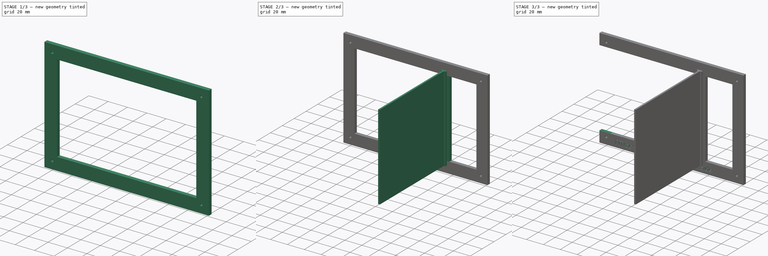
[diagram: build sequence overview — one tinted view per stage of 3, left to right]
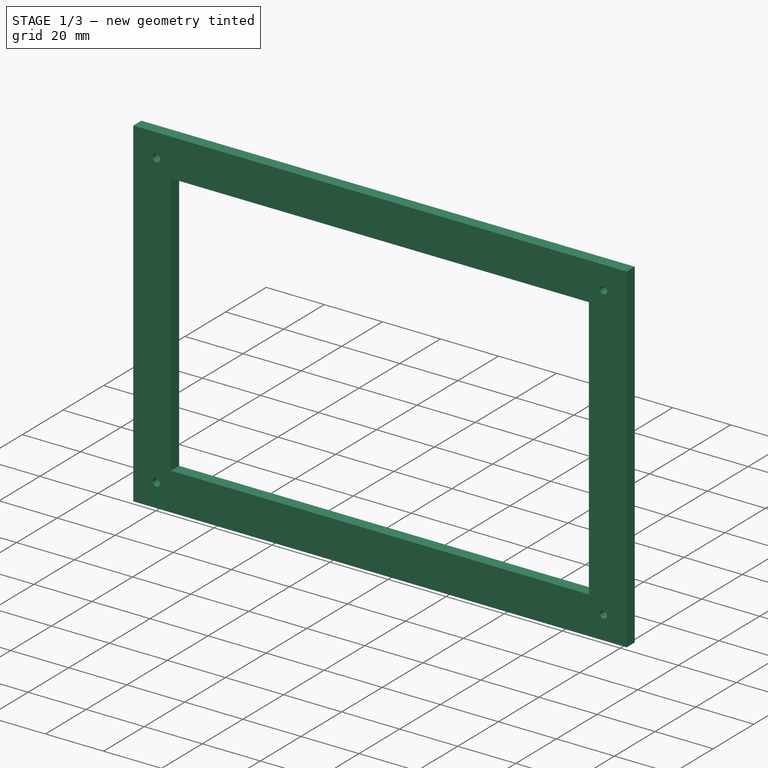
[diagram: stage 1 of 3 — iso view after this stage's code; geometry added in this stage tinted green]
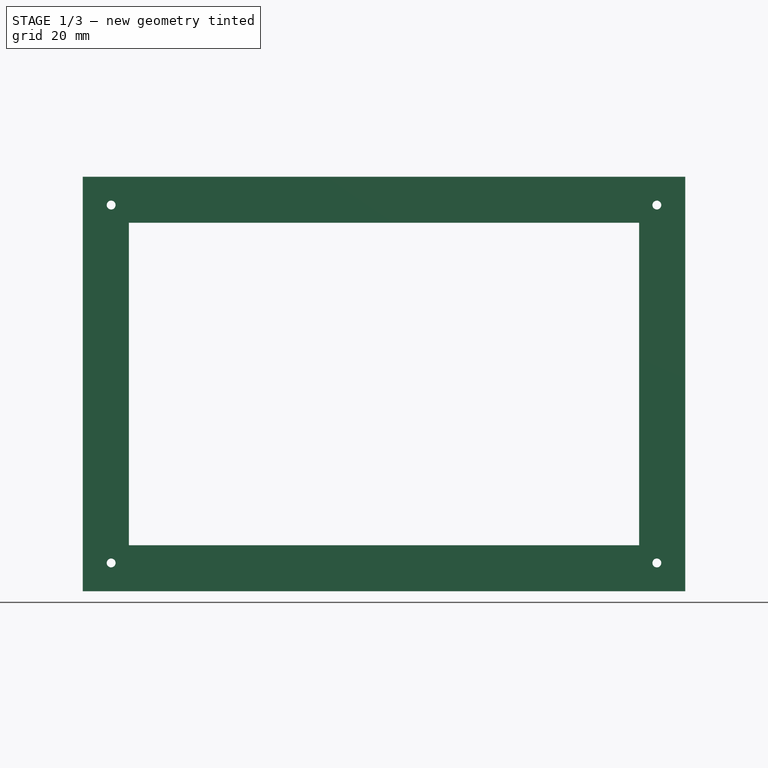
[diagram: stage 1 of 3 — front view after this stage's code; geometry added in this stage tinted green]
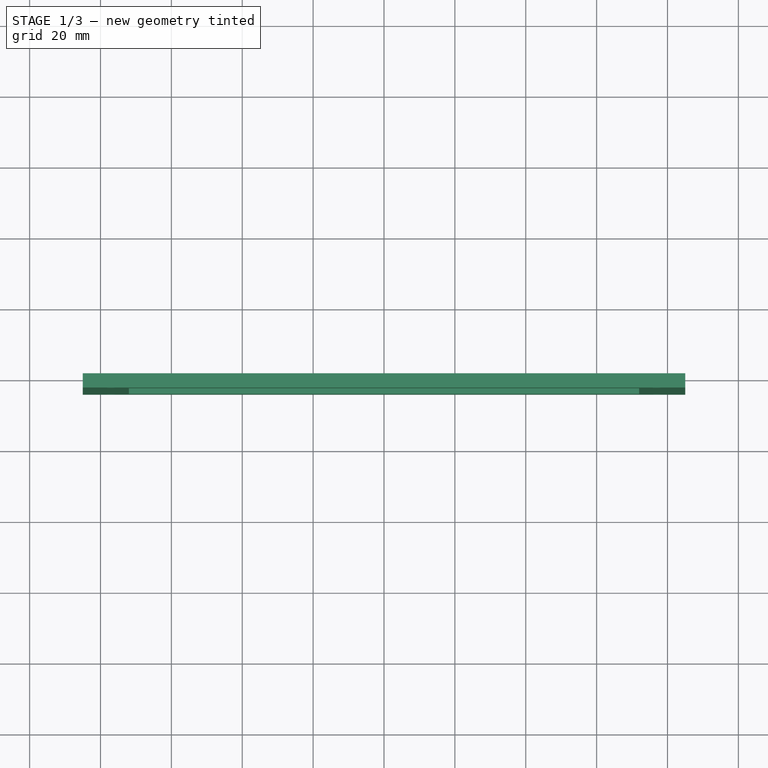
[diagram: stage 1 of 3 — top view after this stage's code; geometry added in this stage tinted green]
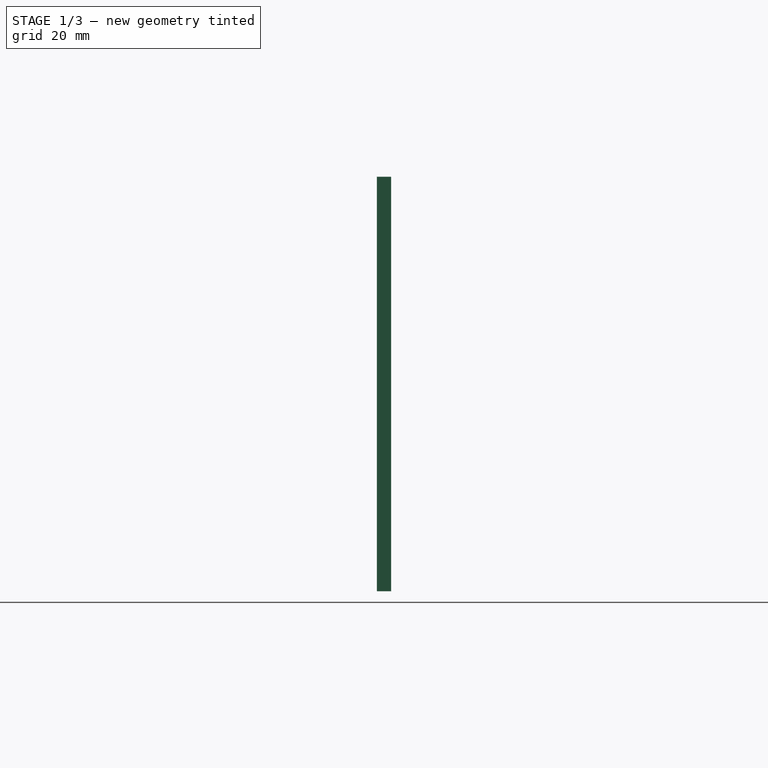
[diagram: stage 1 of 3 — right view after this stage's code; geometry added in this stage tinted green]
FCSTD DOCUMENT  (FreeCAD 1.0R39109 (Git))
Label: Middle Layer - Power Side - Lower Floor
License: All rights reserved
LicenseURL: https://en.wikipedia.org/wiki/All_rights_reserved
objects: Sketcher::SketchObject×6, PartDesign::Pad×4, PartDesign::Pocket×3, App::Link×1, Part::Part2DObjectPython×1, PartDesign::Body×1, App::Part×1
note: 35 computed .brp shape members not serialized (recipe doc carries the construction recipe); baked Part::Feature solids carry a one-line shape summary decoded from their .brp
EXTERNAL_REF file=../Master Document.FCStd obj=Spreadsheet

FEATURE [Sketcher::SketchObject] Sketch005
  ArcFitTolerance = 0
  AttachmentSupport = -> [XZ_Plane006]
  FullyConstrained = true
  MakeInternals = false
  MapMode = 5
  Placement = pos=(0,0,0) rot=(1,0,0;1.5708rad)
  expr: Constraints[10] = <<Monitor Chassis Parameters>>.GSMonitorFloorWidth_PiSide / 2
  expr: Constraints[11] = <<Monitor Chassis Parameters>>.GSMonitorFloorLength_PiSide / 2
  expr: Constraints[8] = <<Monitor Chassis Parameters>>.GSMonitorFloorWidth_PiSide
  expr: Constraints[9] = <<Monitor Chassis Parameters>>.GSMonitorFloorLength_PiSide
  sketch-geometry (4):
    g0: LineSegment StartX=-85 StartY=58.5 StartZ=0 EndX=85 EndY=58.5 EndZ=0
    g1: LineSegment StartX=85 StartY=58.5 StartZ=0 EndX=85 EndY=-58.5 EndZ=0
    g2: LineSegment StartX=85 StartY=-58.5 StartZ=0 EndX=-85 EndY=-58.5 EndZ=0
    g3: LineSegment StartX=-85 StartY=-58.5 StartZ=0 EndX=-85 EndY=58.5 EndZ=0
  constraints (12):
    c: Coincident(g0,g1)
    c: Coincident(g1,g2)
    c: Coincident(g2,g3)
    c: Coincident(g3,g0)
    c: Horizontal(g0)
    c: Horizontal(g2)
    c: Vertical(g1)
    c: Vertical(g3)
    c: DistanceY(g2,g0) = 117
    c: DistanceX(g0,g0) = 170
    c: DistanceY(g-1,g0) = 58.5
    c: DistanceX(g0,g-1) = 85
FEATURE [PartDesign::Pad] Pad002  label="Floor Power Pad"
  Direction = (0,-1,2e-16)
  Length = 4
  Length2 = 10
  Placement = pos=(0,0,0) rot=(1,0,0;1.5708rad)
  Profile = -> Sketch005
  ReferenceAxis = -> Sketch005 [N_Axis]
  Suppressed = false
  Type = 0
  expr: Length = <<Monitor Chassis Parameters>>.GSCamPlateThickness
FEATURE [Sketcher::SketchObject] Sketch007
  ArcFitTolerance = 0
  ExternalGeometry = -> [Sketch005]
  FullyConstrained = true
  MakeInternals = false
  MapMode = 5
  Placement = pos=(0,0,0) rot=(-1,0,0;1.5708rad)
  expr: Constraints[10] = <<Monitor Chassis Parameters>>.GSMonitorFloorMountHoleEdgeOffset
  expr: Constraints[11] = <<Monitor Chassis Parameters>>.GSMonitorFloorMountHoleSideOffset
  expr: Constraints[12] = <<Monitor Chassis Parameters>>.GSMonitorFloorMountingScrewDiameter
  expr: Constraints[13] = <<Monitor Chassis Parameters>>.GSMonitorFloorMountingScrewDiameter
  expr: Constraints[14] = 1.3 * <<Monitor Chassis Parameters>>.GSMonitorFloorRibMinimumWidth
  expr: Constraints[15] = <<Monitor Chassis Parameters>>.GSMonitorFloorMountingScrewDiameter
  expr: Constraints[16] = <<Monitor Chassis Parameters>>.GSMonitorFloorMountingScrewDiameter
  expr: Constraints[18] = <<Monitor Chassis Parameters>>.GSMonitorFloorMountHoleEdgeOffset
  expr: Constraints[19] = <<Monitor Chassis Parameters>>.GSMonitorFloorMountHoleSideOffset
  expr: Constraints[20] = 1.3 * <<Monitor Chassis Parameters>>.GSMonitorFloorRibMinimumWidth
  expr: Constraints[8] = 1.3 * <<Monitor Chassis Parameters>>.GSMonitorFloorRibMinimumWidth
  expr: Constraints[9] = 1.3 * <<Monitor Chassis Parameters>>.GSMonitorFloorRibMinimumWidth
  sketch-geometry (8):
    g0: LineSegment StartX=-72 StartY=45.5 StartZ=0 EndX=72 EndY=45.5 EndZ=0
    g1: LineSegment StartX=72 StartY=45.5 StartZ=0 EndX=72 EndY=-45.5 EndZ=0
    g2: LineSegment StartX=72 StartY=-45.5 StartZ=0 EndX=-72 EndY=-45.5 EndZ=0
    g3: LineSegment StartX=-72 StartY=-45.5 StartZ=0 EndX=-72 EndY=45.5 EndZ=0
    g4: Circle CenterX=-77 CenterY=50.5 CenterZ=0 NormalX=0 NormalY=0 NormalZ=1 AngleXU=0 Radius=1.25
    g5: Circle CenterX=-77 CenterY=-50.5 CenterZ=0 NormalX=0 NormalY=0 NormalZ=1 AngleXU=0 Radius=1.25
    g6: Circle CenterX=77 CenterY=-50.5 CenterZ=0 NormalX=0 NormalY=0 NormalZ=1 AngleXU=0 Radius=1.25
    g7: Circle CenterX=77 CenterY=50.5 CenterZ=0 NormalX=0 NormalY=0 NormalZ=1 AngleXU=0 Radius=1.25
  constraints (24):
    c: Coincident(g0,g1)
    c: Coincident(g1,g2)
    c: Coincident(g2,g3)
    c: Coincident(g3,g0)
    c: Horizontal(g0)
    c: Horizontal(g2)
    c: Vertical(g1)
    c: Vertical(g3)
    c: DistanceY(g0,g-3) = 13
    c: DistanceY(g-4,g2) = 13
    c: DistanceX(g-3,g4) = 8
    c: DistanceY(g4,g-3) = 8
    c: Diameter(g4) = 2.5
    c: Diameter(g5) = 2.5
    c: DistanceX(g-3,g0) = 13
    c: Diameter(g6) = 2.5
    c: Diameter(g7) = 2.5
    c: Vertical(g7,g6)
    c: DistanceX(g6,g-5) = 8
    c: DistanceY(g-5,g6) = 8
    c: DistanceX(g1,g-5) = 13
    c: Horizontal(g5,g6)
    c: Horizontal(g4,g7)
    c: Vertical(g5,g4)
FEATURE [PartDesign::Pocket] Pocket003  label="Floor Power Holes Pocket"
  BaseFeature = -> Pad002
  Direction = (0,-1,0)
  Length = 4
  Length2 = 5
  Placement = pos=(0,0,0) rot=(1,0,0;1.5708rad)
  Profile = -> Sketch007
  ReferenceAxis = -> Sketch007 [N_Axis]
  Suppressed = false
  Type = 0
  expr: Length = <<Monitor Chassis Parameters>>.GSCamPlateThickness
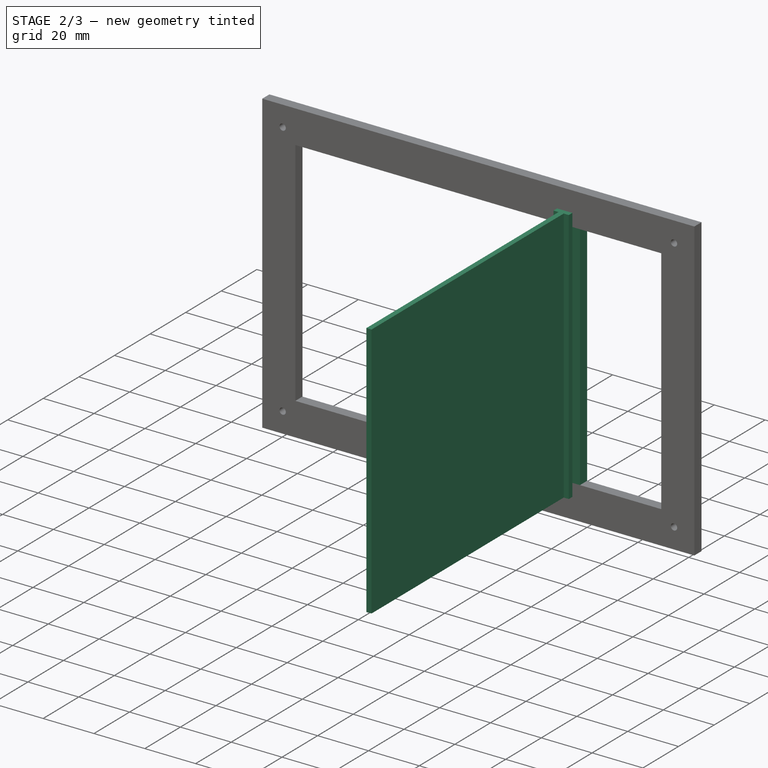
[diagram: stage 2 of 3 — iso view after this stage's code; geometry added in this stage tinted green]
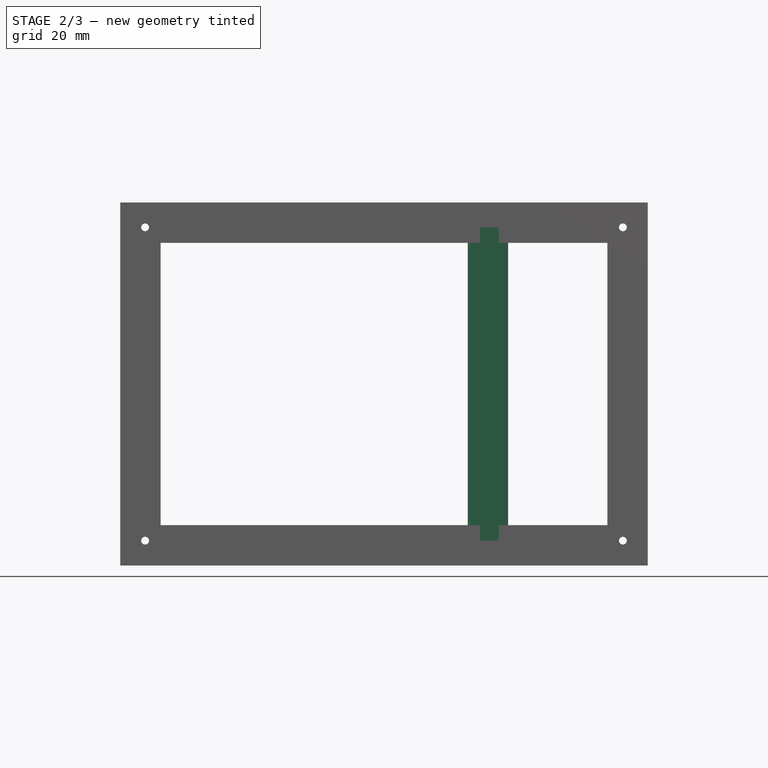
[diagram: stage 2 of 3 — front view after this stage's code; geometry added in this stage tinted green]
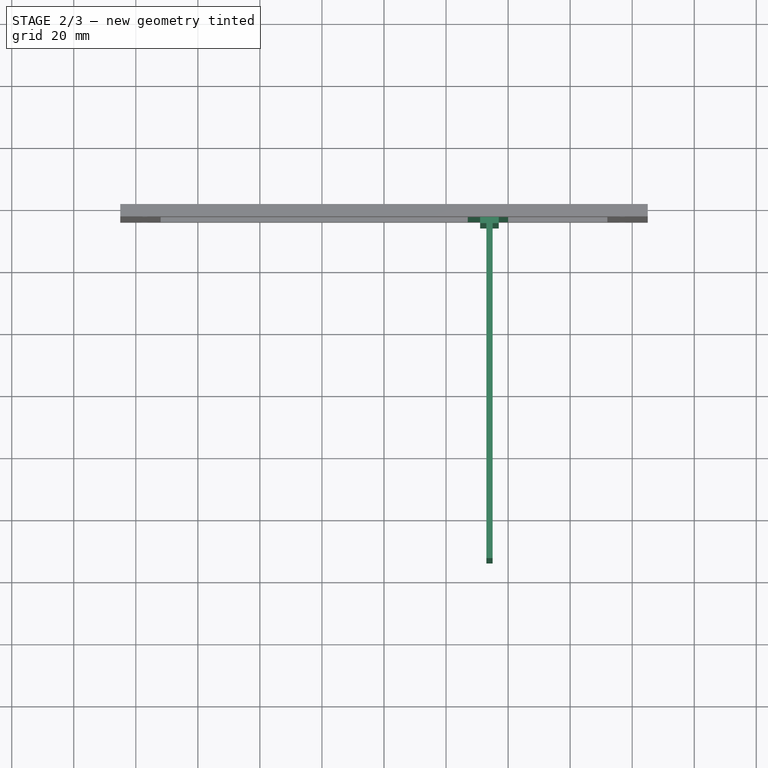
[diagram: stage 2 of 3 — top view after this stage's code; geometry added in this stage tinted green]
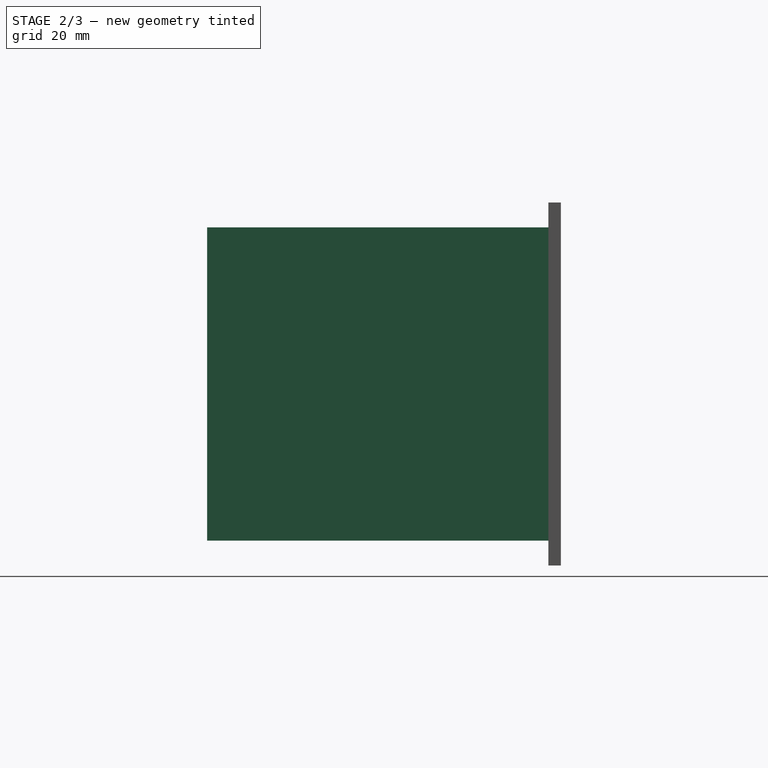
[diagram: stage 2 of 3 — right view after this stage's code; geometry added in this stage tinted green]
FEATURE [Sketcher::SketchObject] Sketch011
  ArcFitTolerance = 0
  FullyConstrained = true
  MakeInternals = false
  MapMode = 5
  Placement = pos=(0,-4,0) rot=(1,0,0;1.5708rad)
  expr: Constraints[10] = <<Monitor Chassis Parameters>>.GSMonitorViewPortLengthLeft
  expr: Constraints[11] = 2 * <<Monitor Chassis Parameters>>.GSCamWallThickness
  expr: Constraints[8] = 2
  expr: Constraints[9] = <<Monitor Chassis Parameters>>.GSMonitorFloorWidth_PiSide - 4 * <<Monitor Chassis Parameters>>.GSCamWallThickness
  sketch-geometry (4):
    g0: LineSegment StartX=33 StartY=50.5 StartZ=0 EndX=35 EndY=50.5 EndZ=0
    g1: LineSegment StartX=35 StartY=50.5 StartZ=0 EndX=35 EndY=-50.5 EndZ=0
    g2: LineSegment StartX=35 StartY=-50.5 StartZ=0 EndX=33 EndY=-50.5 EndZ=0
    g3: LineSegment StartX=33 StartY=-50.5 StartZ=0 EndX=33 EndY=50.5 EndZ=0
  constraints (12):
    c: Coincident(g0,g1)
    c: Coincident(g1,g2)
    c: Coincident(g2,g3)
    c: Coincident(g3,g0)
    c: Horizontal(g0)
    c: Horizontal(g2)
    c: Vertical(g1)
    c: Vertical(g3)
    c: DistanceX(g0,g0) = 2
    c: DistanceY(g2,g0) = 101
    c: DistanceX(g0,g-3) = 50
    c: DistanceY(g0,g-3) = 8
FEATURE [Sketcher::SketchObject] Sketch012
  ArcFitTolerance = 0
  ExternalGeometry = -> [Sketch011,Sketch007]
  FullyConstrained = true
  MakeInternals = false
  MapMode = 5
  Placement = pos=(0,0,0) rot=(-1,0,0;1.5708rad)
  expr: Constraints[8] = 3.25 * <<Monitor Chassis Parameters>>.GSCamWallThickness
  expr: Constraints[9] = 1.25 * <<Monitor Chassis Parameters>>.GSCamWallThickness
  sketch-geometry (4):
    g0: LineSegment StartX=27 StartY=45.5 StartZ=0 EndX=40 EndY=45.5 EndZ=0
    g1: LineSegment StartX=40 StartY=45.5 StartZ=0 EndX=40 EndY=-45.5 EndZ=0
    g2: LineSegment StartX=40 StartY=-45.5 StartZ=0 EndX=27 EndY=-45.5 EndZ=0
    g3: LineSegment StartX=27 StartY=-45.5 StartZ=0 EndX=27 EndY=45.5 EndZ=0
  constraints (12):
    c: Coincident(g0,g1)
    c: Coincident(g1,g2)
    c: Coincident(g2,g3)
    c: Coincident(g3,g0)
    c: Horizontal(g0)
    c: Horizontal(g2)
    c: Vertical(g1)
    c: Vertical(g3)
    c: DistanceX(g0,g0) = 13
    c: DistanceX(g-4,g0) = 5
    c: Horizontal(g-5,g0)
    c: Horizontal(g1,g-6)
FEATURE [PartDesign::Pad] Pad005  label="Side Wall Base Pad"
  BaseFeature = -> Pocket003
  Direction = (0,1,0)
  Length = 4
  Length2 = 10
  Placement = pos=(0,0,0) rot=(1,0,0;1.5708rad)
  Profile = -> Sketch012
  ReferenceAxis = -> Sketch012 [N_Axis]
  Reversed = true
  Suppressed = false
  Type = 0
  expr: Length = <<Monitor Chassis Parameters>>.GSMonitorFloorThickness
FEATURE [PartDesign::Pad] Pad006  label="Side Wall Pad"
  BaseFeature = -> Pad005
  Direction = (0,-1,0)
  Length = 110
  Length2 = 10
  Placement = pos=(0,0,0) rot=(1,0,0;1.5708rad)
  Profile = -> Sketch011
  ReferenceAxis = -> Sketch011 [N_Axis]
  Suppressed = false
  Type = 0
  expr: Length = <<Monitor Chassis Parameters>>.GsMonitorWall2OverallHeight - <<Monitor Chassis Parameters>>.GSMiddleBottomFloorPadDistanceFromBottom
FEATURE [App::Link] Link  label="Monitor Chassis Parameters"
  LinkedObject = -> <external ../Master Document.FCStd>#Spreadsheet
FEATURE [Sketcher::SketchObject] Sketch
  ArcFitTolerance = 1e-06
  AttachmentSupport = -> [Pad006]
  ExternalGeometry = -> [Pad006]
  FullyConstrained = true
  MakeInternals = false
  MapMode = 5
  Placement = pos=(0,-1.11e-14,-50.5) rot=(1,0,0;3.14159rad)
  expr: Constraints[10] = <<Monitor Chassis Parameters>>.GSCamWallThickness
  expr: Constraints[11] = 2
  expr: Constraints[8] = 2
  expr: Constraints[9] = 4
  sketch-geometry (4):
    g0: LineSegment StartX=31 StartY=6 StartZ=0 EndX=31 EndY=4 EndZ=0
    g1: LineSegment StartX=31 StartY=4 StartZ=0 EndX=37 EndY=4 EndZ=0
    g2: LineSegment StartX=37 StartY=4 StartZ=0 EndX=37 EndY=6 EndZ=0
    g3: LineSegment StartX=37 StartY=6 StartZ=0 EndX=31 EndY=6 EndZ=0
  constraints (12):
    c: Coincident(g0,g1)
    c: Coincident(g1,g2)
    c: Coincident(g2,g3)
    c: Coincident(g3,g0)
    c: Vertical(g0)
    c: Vertical(g2)
    c: Horizontal(g1)
    c: Horizontal(g3)
    c: DistanceX(g-3,g1) = 2
    c: DistanceX(g0,g-3) = 4
    c: DistanceY(g-1,g0) = 4
    c: DistanceY(g0,g0) = 2
FEATURE [PartDesign::Pad] Pad  label="Side Wall Support Pad"
  BaseFeature = -> Pad006
  Direction = (0,0,-1)
  Length = 101
  Length2 = 10
  Placement = pos=(0,0,0) rot=(1,0,0;1.5708rad)
  Profile = -> Sketch
  ReferenceAxis = -> Sketch [N_Axis]
  Reversed = true
  Suppressed = false
  Type = 0
  expr: Length = <<Monitor Chassis Parameters>>.GSMonitorFloorWidth_PiSide - 4 * <<Monitor Chassis Parameters>>.GSCamWallThickness
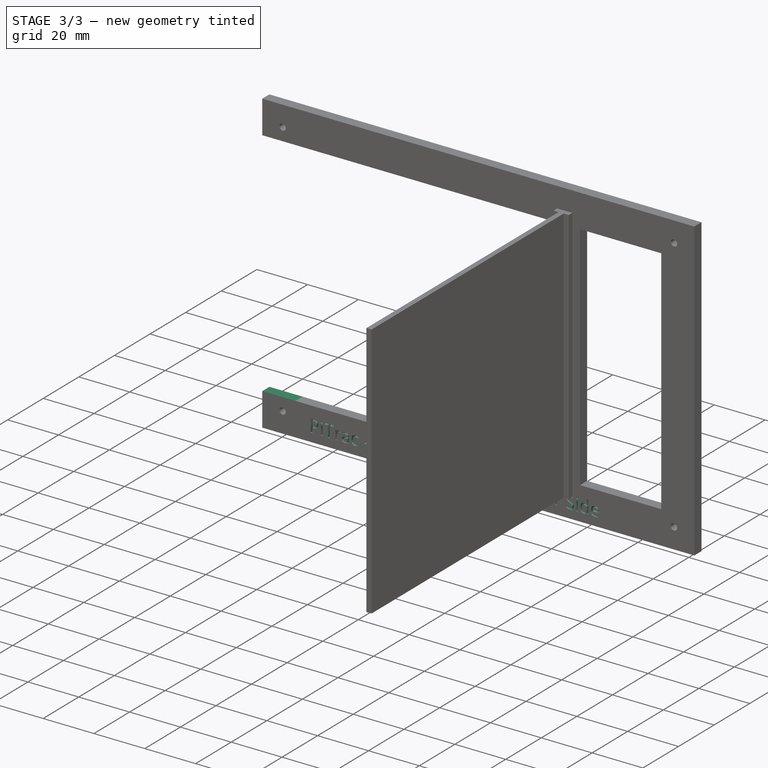
[diagram: stage 3 of 3 — iso view after this stage's code; geometry added in this stage tinted green]
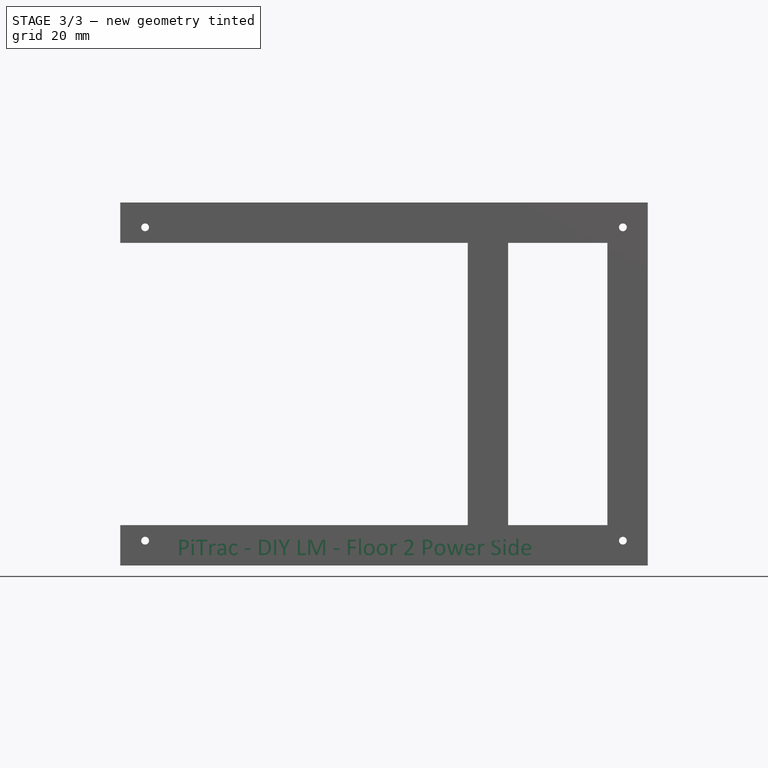
[diagram: stage 3 of 3 — front view after this stage's code; geometry added in this stage tinted green]
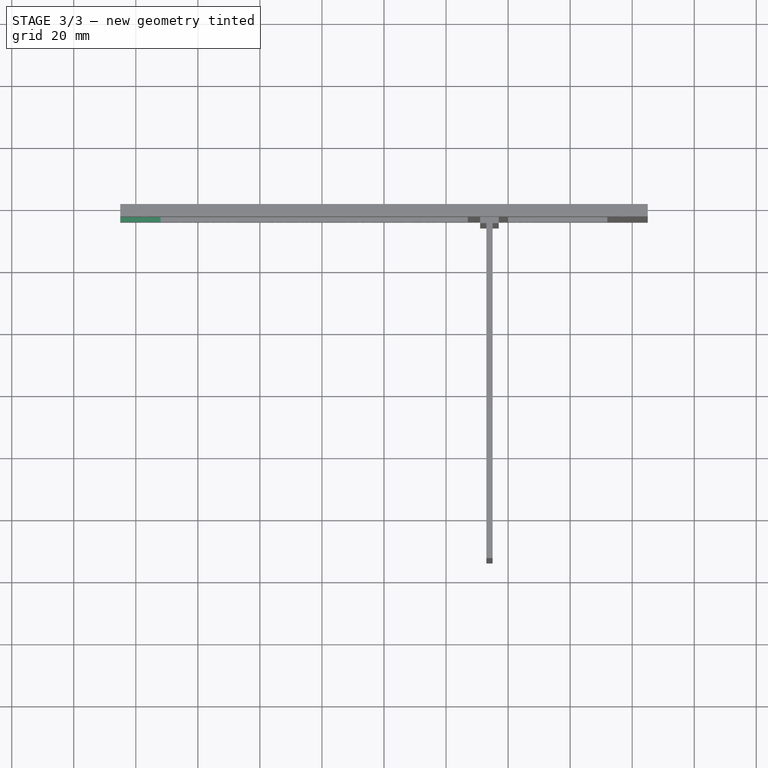
[diagram: stage 3 of 3 — top view after this stage's code; geometry added in this stage tinted green]
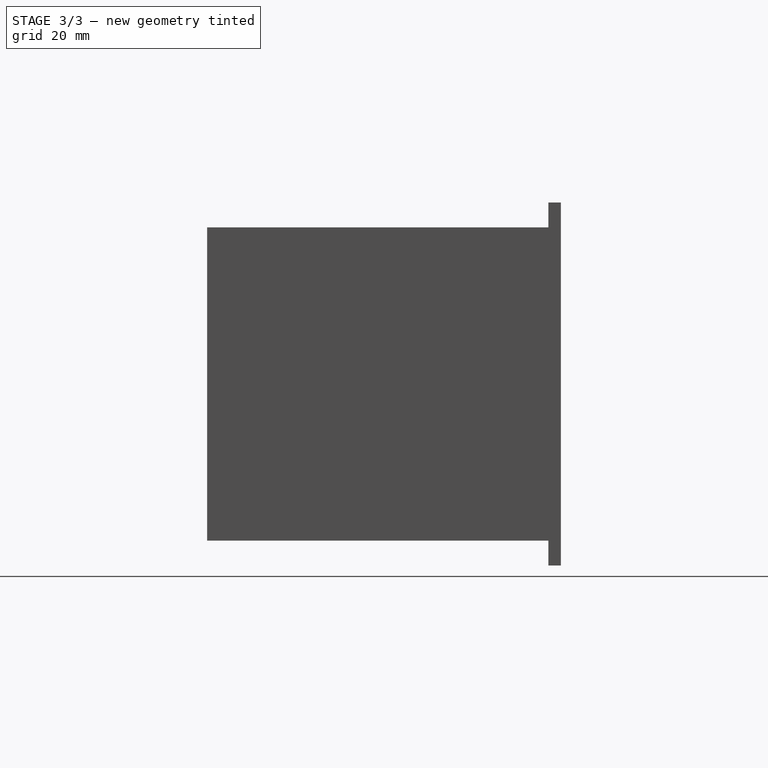
[diagram: stage 3 of 3 — right view after this stage's code; geometry added in this stage tinted green]
FEATURE [Part::Part2DObjectPython] ShapeString  # Draft 2D object (typed FeaturePython)
  FontFile = <path>
  Fuse = false
  Justification = 6
  JustificationReference = 0
  KeepLeftMargin = false
  MakeFace = true
  ObliqueAngle = 0
  Placement = pos=(-65.98,-4,-55.17) rot=(-1,0,0;4.71239rad)
  ScaleToSize = true
  Size = 5
  String = PiTrac - DIY LM - Floor 2 Power Side
  Tracking = 0
FEATURE [PartDesign::Pocket] Pocket  label="Part ID Pocket"
  BaseFeature = -> Pad
  Direction = (-2e-16,1,-7e-16)
  Length = 1
  Length2 = 5
  Placement = pos=(0,0,0) rot=(1,0,0;1.5708rad)
  Profile = -> ShapeString
  ReferenceAxis = -> ShapeString [N_Axis]
  Suppressed = false
  Type = 0
FEATURE [Sketcher::SketchObject] Sketch013
  ArcFitTolerance = 1e-06
  AttachmentSupport = -> [Pocket]
  ExternalGeometry = -> [Sketch005,Pocket]
  FullyConstrained = true
  MakeInternals = false
  MapMode = 5
  Placement = pos=(0,-4,0) rot=(1,0,0;1.5708rad)
  sketch-geometry (4):
    g0: LineSegment StartX=-72 StartY=-45.5 StartZ=0 EndX=-72 EndY=45.5 EndZ=0
    g1: LineSegment StartX=-72 StartY=45.5 StartZ=0 EndX=-85 EndY=45.5 EndZ=0
    g2: LineSegment StartX=-85 StartY=45.5 StartZ=0 EndX=-85 EndY=-45.5 EndZ=0
    g3: LineSegment StartX=-85 StartY=-45.5 StartZ=0 EndX=-72 EndY=-45.5 EndZ=0
  constraints (10):
    c: Coincident(g0,g1)
    c: Coincident(g1,g2)
    c: Coincident(g2,g3)
    c: Coincident(g3,g0)
    c: Vertical(g2)
    c: Horizontal(g1)
    c: Horizontal(g3)
    c: Coincident(g0,g-4)
    c: Vertical(g2,g-3)
    c: Coincident(g0,g-5)
FEATURE [PartDesign::Pocket] Pocket004  label="End Removal Pocket"
  BaseFeature = -> Pocket
  Direction = (0,1,-2e-16)
  Length = 4
  Length2 = 5
  Placement = pos=(0,0,0) rot=(1,0,0;1.5708rad)
  Profile = -> Sketch013
  ReferenceAxis = -> Sketch013 [N_Axis]
  Suppressed = false
  Type = 0
  expr: Length = <<Monitor Chassis Parameters>>.GSCamPlateThickness
FEATURE [PartDesign::Body] Body002  label="Middle Layer - Power Side - Lower Floor Body"
  AllowCompound = false
  Group = -> [Sketch005,Pad002,Sketch007,Pocket003,Sketch011,Sketch012,Pad005,Pad006,Sketch,Pad,ShapeString,Pocket,Sketch013,Pocket004]
  Origin = -> Origin006
  Placement = pos=(-205,0,0) rot=(0,0,1;0rad)
  Tip = -> Pocket004
FEATURE [App::Part] Part001  label="Middle Layer - Power Side - Lower Floor Object"
  Group = -> [Body002]
  Origin = -> Origin004
note: 1 file-system path scrubbed to <path> (originals preserved in the JSON sidecar)
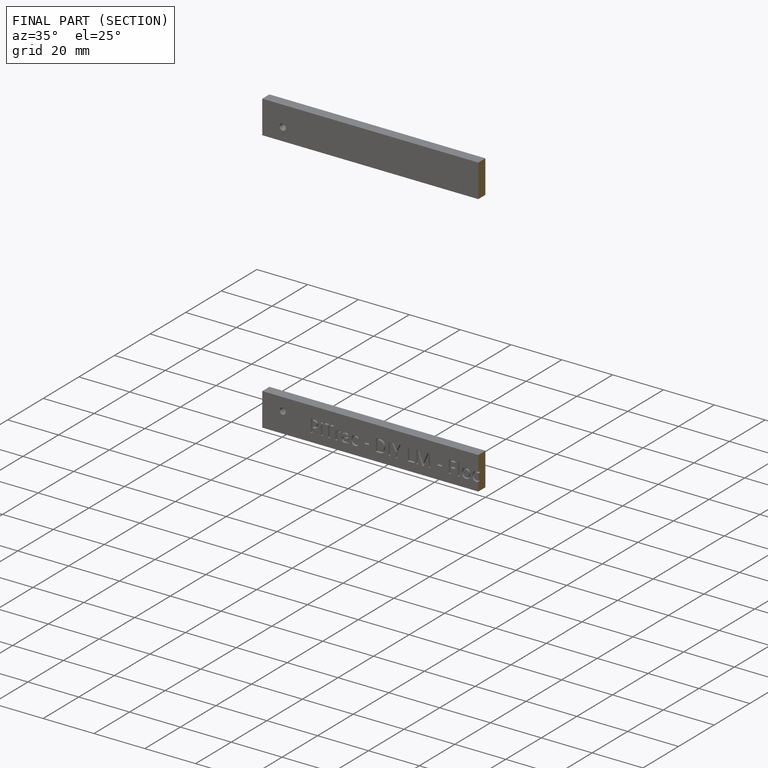
[diagram: finished part — half-section view (interior)]
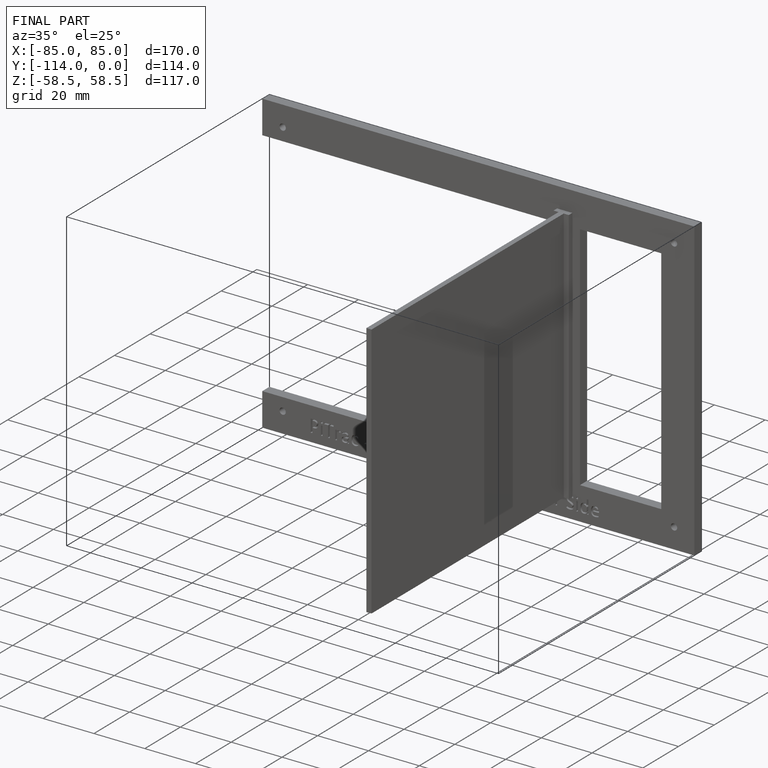
[diagram: finished part — iso view with bounding-box wireframe]
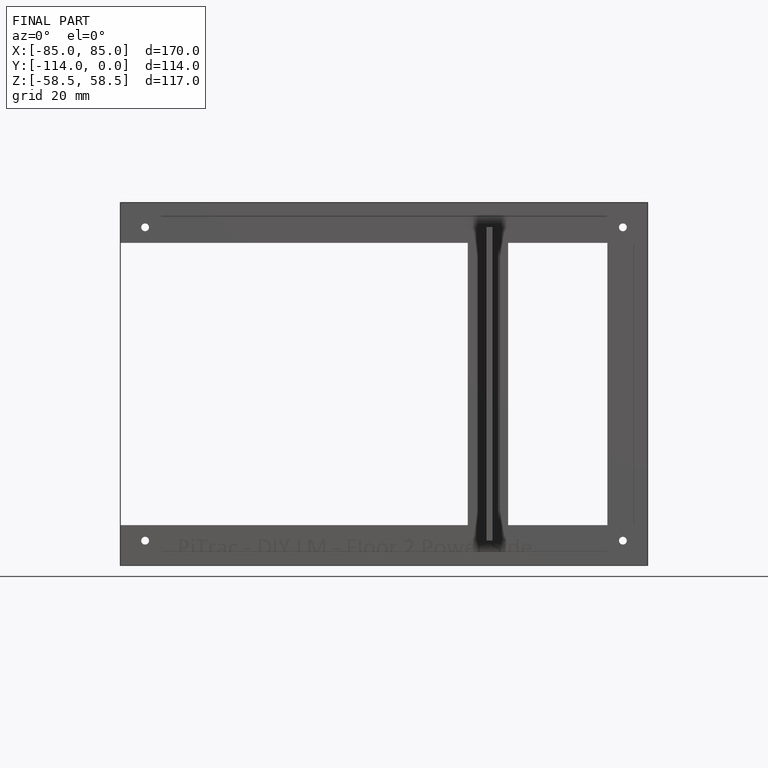
[diagram: finished part — front view with bounding-box wireframe]
